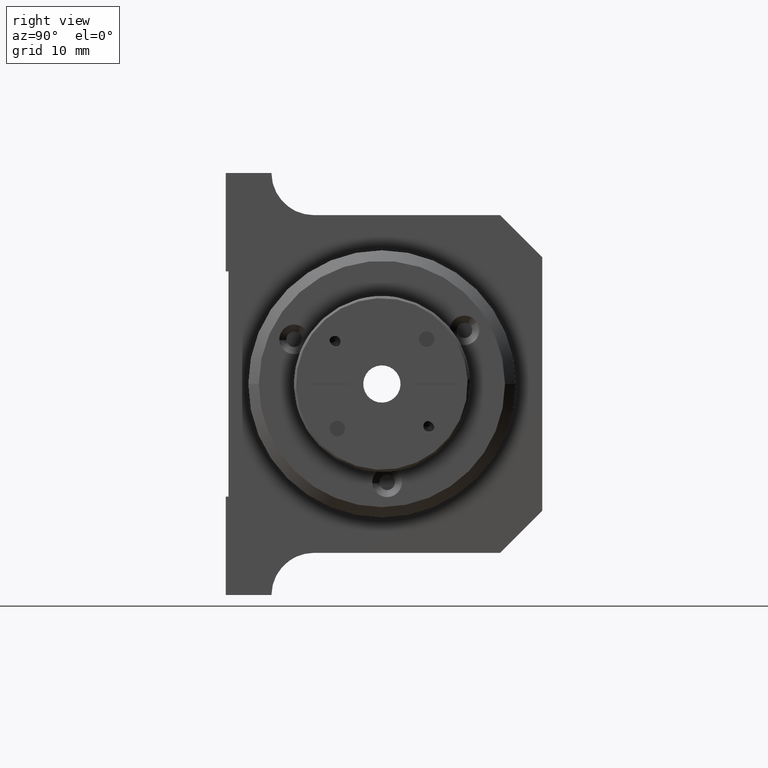
[diagram: clean part render]
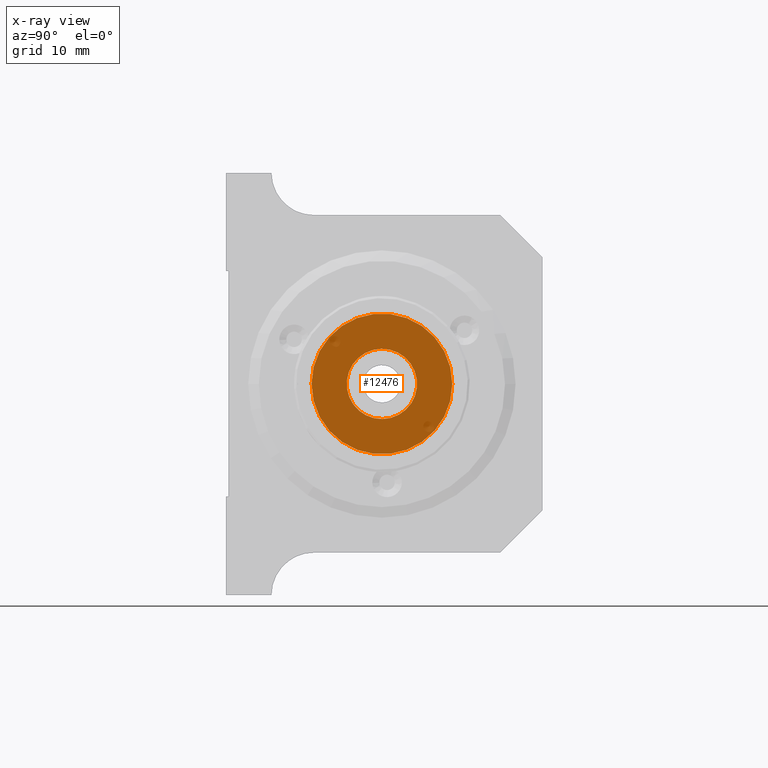
[diagram: x-ray — body ghosted, one internal face saturated and labeled with its STEP entity id]
A machine part, right view, then the same camera in x-ray: the body is ghosted and one INTERNAL B-rep face — a face not visible from any outside direction — is saturated and labeled: STEP entity #12476.
In plain terms, the highlighted planar face has unit normal (1, 0, 0).
Its self-contained STEP definition (entity closure, byte-faithful):
#621 = DIRECTION ( 'NONE',  ( 1.000000000000000000, 0.000000000000000000, 0.000000000000000000 ) ) ;
#676 = CIRCLE ( 'NONE', #2869, 5.000000000000000000 ) ;
#842 = EDGE_CURVE ( 'NONE', #12232, #4774, #9057, .T. ) ;
#1278 = DIRECTION ( 'NONE',  ( 0.000000000000000000, 1.000000000000000000, 0.000000000000000000 ) ) ;
#1329 = DIRECTION ( 'NONE',  ( 1.000000000000000000, 0.000000000000000000, 0.000000000000000000 ) ) ;
#1343 = EDGE_CURVE ( 'NONE', #8802, #5943, #676, .T. ) ;
#1354 = AXIS2_PLACEMENT_3D ( 'NONE', #9168, #1329, #4196 ) ;
#1443 = EDGE_CURVE ( 'NONE', #5943, #8802, #9404, .T. ) ;
#1776 = CARTESIAN_POINT ( 'NONE',  ( 5.000022067927000435, 24.17494634860999980, 0.7607689026565999102 ) ) ;
#1904 = CARTESIAN_POINT ( 'NONE',  ( 5.000022067927000435, 10.01035794883000030, 3.531523790777999938 ) ) ;
#2060 = ORIENTED_EDGE ( 'NONE', *, *, #1443, .F. ) ;
#2489 = CARTESIAN_POINT ( 'NONE',  ( 5.000022067927000435, 15.84576812670000123, 6.294735847590000155 ) ) ;
#2568 = PLANE ( 'NONE',  #4478 ) ;
#2869 = AXIS2_PLACEMENT_3D ( 'NONE', #3043, #11715, #4769 ) ;
#3043 = CARTESIAN_POINT ( 'NONE',  ( 5.000022067927000435, 20.01035723764999830, 3.527752375123000217 ) ) ;
#3718 = CARTESIAN_POINT ( 'NONE',  ( 5.000022067927000435, 20.01035723764999830, 3.527752375123000217 ) ) ;
#4196 = DIRECTION ( 'NONE',  ( 0.000000000000000000, 0.8329178221912959534, -0.5533966944932979803 ) ) ;
#4276 = EDGE_LOOP ( 'NONE', ( #10670, #8563 ) ) ;
#4478 = AXIS2_PLACEMENT_3D ( 'NONE', #5612, #6594, #1278 ) ;
#4546 = CIRCLE ( 'NONE', #6216, 9.999999999999998224 ) ;
#4769 = DIRECTION ( 'NONE',  ( 0.000000000000000000, -0.8329178221912959534, 0.5533966944932979803 ) ) ;
#4774 = VERTEX_POINT ( 'NONE', #1904 ) ;
#5612 = CARTESIAN_POINT ( 'NONE',  ( 5.000022067927000435, 20.01035723764999830, 3.527752375123000217 ) ) ;
#5943 = VERTEX_POINT ( 'NONE', #1776 ) ;
#6216 = AXIS2_PLACEMENT_3D ( 'NONE', #10565, #9587, #11392 ) ;
#6594 = DIRECTION ( 'NONE',  ( 1.000000000000000000, 0.000000000000000000, 0.000000000000000000 ) ) ;
#7757 = FACE_OUTER_BOUND ( 'NONE', #4276, .T. ) ;
#7808 = AXIS2_PLACEMENT_3D ( 'NONE', #3718, #621, #10493 ) ;
#8563 = ORIENTED_EDGE ( 'NONE', *, *, #9724, .T. ) ;
#8802 = VERTEX_POINT ( 'NONE', #2489 ) ;
#9057 = CIRCLE ( 'NONE', #7808, 9.999999999999998224 ) ;
#9168 = CARTESIAN_POINT ( 'NONE',  ( 5.000022067927000435, 20.01035723764999830, 3.527752375123000217 ) ) ;
#9404 = CIRCLE ( 'NONE', #1354, 5.000000000000000000 ) ;
#9587 = DIRECTION ( 'NONE',  ( 1.000000000000000000, 0.000000000000000000, 0.000000000000000000 ) ) ;
#9724 = EDGE_CURVE ( 'NONE', #4774, #12232, #4546, .T. ) ;
#10493 = DIRECTION ( 'NONE',  ( 0.000000000000000000, 0.9999999288821171950, -0.0003771415654786267600 ) ) ;
#10565 = CARTESIAN_POINT ( 'NONE',  ( 5.000022067927000435, 20.01035723764999830, 3.527752375123000217 ) ) ;
#10670 = ORIENTED_EDGE ( 'NONE', *, *, #842, .T. ) ;
#10893 = ORIENTED_EDGE ( 'NONE', *, *, #1343, .F. ) ;
#11340 = EDGE_LOOP ( 'NONE', ( #2060, #10893 ) ) ;
#11392 = DIRECTION ( 'NONE',  ( 0.000000000000000000, -0.9999999288821171950, 0.0003771415654786267600 ) ) ;
#11715 = DIRECTION ( 'NONE',  ( 1.000000000000000000, 0.000000000000000000, 0.000000000000000000 ) ) ;
#12232 = VERTEX_POINT ( 'NONE', #12545 ) ;
#12253 = FACE_BOUND ( 'NONE', #11340, .T. ) ;
#12476 = ADVANCED_FACE ( 'NONE', ( #7757, #12253 ), #2568, .T. ) ;
#12545 = CARTESIAN_POINT ( 'NONE',  ( 5.000022067927000435, 30.01035652647000163, 3.523980959468000052 ) ) ;